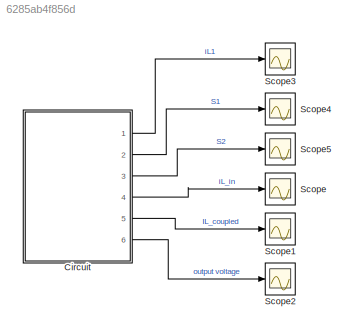
MODEL slx_6285ab4f856d
KIND model
CONFIG AbsTol = auto
CONFIG EnableMultiTasking = off
CONFIG FixedStep = auto
CONFIG MaxStep = auto
CONFIG MinStep = auto
CONFIG RelTol = 1e-3
CONFIG SampleTimeConstraint = Unconstrained
CONFIG SolverName = ode23t
CONFIG StartTime = 0.0
CONFIG StopTime = 0.5
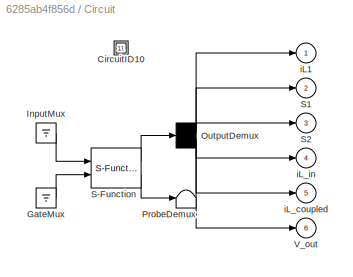
BLOCK [SubSystem] Circuit
  CopyFcn = plecs('sl', 203);
  DeleteFcn = plecs('sl', 205);
  DestroyFcn = plecs('sl', 207);
  ErrorFcn = plerrorfcn
  InitFcn = plecs('sl', 214);
  LoadFcn = plecs('sl', 200);
  NameChangeFcn = plecs('sl', 210);
  OpenFcn = plecs('sl', 202);
  Ports = [0, 6]
  PostSaveFcn = plecs('sl', 201);
  PreCopyFcn = plecs('sl', 216);
  PreSaveFcn = plecs('sl', 211);
  RequestExecContextInheritance = off
  ShowPortLabels = FromPortBlockName
  StartFcn = plecs('sl', 208);
  StopFcn = plecs('sl', 209);
  UndoDeleteFcn = plecs('sl', 206);
BLOCK [SubSystem] Circuit/ CircuitID10 
  Ports = []
  RequestExecContextInheritance = off
BLOCK [Ground] Circuit/ GateMux 
BLOCK [Ground] Circuit/ InputMux 
BLOCK [Demux] Circuit/ OutputDemux 
  Outputs = [ 1 1 1 1 2 1 ]
  Ports = [1, 6]
BLOCK [Terminator] Circuit/ ProbeDemux 
BLOCK [S-Function] Circuit/ S-Function 
  EnableBusSupport = off
  FunctionName = plecs
  Ports = [2, 2]
  SFcnIsStateOwnerBlock = off
  SFunctionDeploymentMode = off
BLOCK [Outport] Circuit/S1
  Port = 2
  PortDimensions = 1
BLOCK [Outport] Circuit/S2
  Port = 3
  PortDimensions = 1
BLOCK [Outport] Circuit/V_out
  Port = 6
  PortDimensions = 1
BLOCK [Outport] Circuit/iL1
  PortDimensions = 1
BLOCK [Outport] Circuit/iL_coupled
  Port = 5
  PortDimensions = 2
BLOCK [Outport] Circuit/iL_in
  Port = 4
  PortDimensions = 1
BLOCK [Scope] Scope
  Floating = off
  NumInputPorts = 1
  Ports = [1]
  ScopeSpecificationString = Simulink.scopes.TimeScopeBlockCfg('CurrentConfiguration', extmgr.ConfigurationSet(extmgr.Configuration('Core','General UI',true),extmgr.Configuration('Core','Source UI',true),extmgr.Configuration('Sources','WiredSimulink',true,'DataLoggingVariableName','iL_in','DataLogging',true,'DataLoggingSaveFormat','StructureWithTime'),extmgr.Configuration('Visuals','Time Domain',true,'SerializedDisplays',{str...<+1526ch>
BLOCK [Scope] Scope1
  Floating = off
  NumInputPorts = 1
  Ports = [1]
  ScopeSpecificationString = Simulink.scopes.TimeScopeBlockCfg('CurrentConfiguration', extmgr.ConfigurationSet(extmgr.Configuration('Core','General UI',true),extmgr.Configuration('Core','Source UI',true),extmgr.Configuration('Sources','WiredSimulink',true,'DataLoggingVariableName','iL_coupled','DataLogging',true,'DataLoggingSaveFormat','StructureWithTime'),extmgr.Configuration('Visuals','Time Domain',true,'SerializedDisplays'...<+1524ch>
BLOCK [Scope] Scope2
  Floating = off
  NumInputPorts = 1
  Ports = [1]
  ScopeSpecificationString = Simulink.scopes.TimeScopeBlockCfg('CurrentConfiguration', extmgr.ConfigurationSet(extmgr.Configuration('Core','General UI',true),extmgr.Configuration('Core','Source UI',true),extmgr.Configuration('Sources','WiredSimulink',true,'DataLoggingVariableName','V_out','DataLogging',true,'DataLoggingSaveFormat','StructureWithTime'),extmgr.Configuration('Visuals','Time Domain',true,'SerializedDisplays',{str...<+1460ch>
BLOCK [Scope] Scope3
  Floating = off
  NumInputPorts = 1
  Ports = [1]
  ScopeSpecificationString = Simulink.scopes.TimeScopeBlockCfg('CurrentConfiguration', extmgr.ConfigurationSet(extmgr.Configuration('Core','General UI',true),extmgr.Configuration('Core','Source UI',true),extmgr.Configuration('Sources','WiredSimulink',true,'DataLogging',true,'DataLoggingVariableName','ScopeData4','DataLoggingSaveFormat','StructureWithTime'),extmgr.Configuration('Visuals','Time Domain',true,'SerializedDisplays'...<+1458ch>
BLOCK [Scope] Scope4
  Floating = off
  NumInputPorts = 1
  Ports = [1]
  ScopeSpecificationString = Simulink.scopes.TimeScopeBlockCfg('CurrentConfiguration', extmgr.ConfigurationSet(extmgr.Configuration('Core','General UI',true),extmgr.Configuration('Core','Source UI',true),extmgr.Configuration('Sources','WiredSimulink',true,'DataLoggingVariableName','ScopeData5','DataLogging',true,'DataLoggingSaveFormat','StructureWithTime'),extmgr.Configuration('Visuals','Time Domain',true,'SerializedDisplays'...<+1412ch>
BLOCK [Scope] Scope5
  Floating = off
  NumInputPorts = 1
  Ports = [1]
  ScopeSpecificationString = Simulink.scopes.TimeScopeBlockCfg('CurrentConfiguration', extmgr.ConfigurationSet(extmgr.Configuration('Core','General UI',true),extmgr.Configuration('Core','Source UI',true),extmgr.Configuration('Sources','WiredSimulink',true,'DataLogging',true,'DataLoggingSaveFormat','StructureWithTime'),extmgr.Configuration('Visuals','Time Domain',true,'SerializedDisplays',{struct('MinYLimReal','-0.125','MaxYLi...<+1373ch>
LINE Circuit:1 -> Scope3:1
LINE Circuit:2 -> Scope4:1
LINE Circuit:3 -> Scope5:1
LINE Circuit:4 -> Scope:1
LINE Circuit:5 -> Scope1:1
LINE Circuit:6 -> Scope2:1
